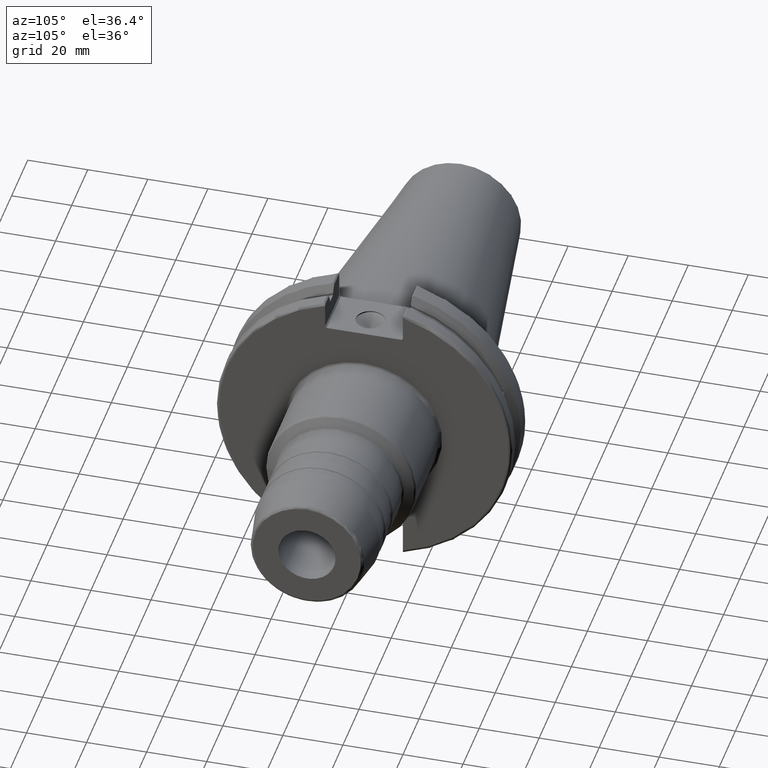
[diagram: clean part render]
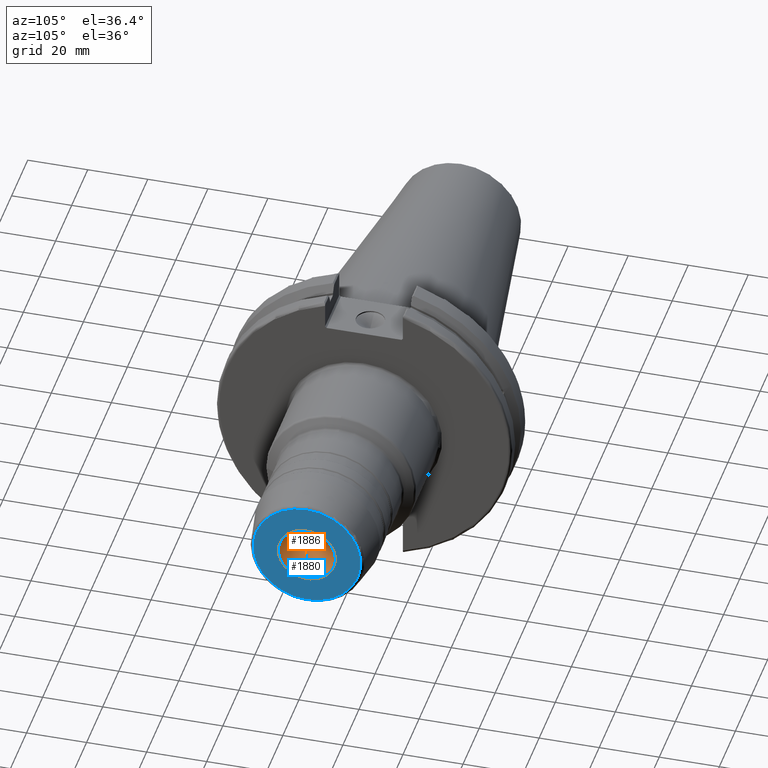
[diagram: same view with the hole feature highlighted: cylindrical wall and planar end face, labeled with their STEP entity ids]
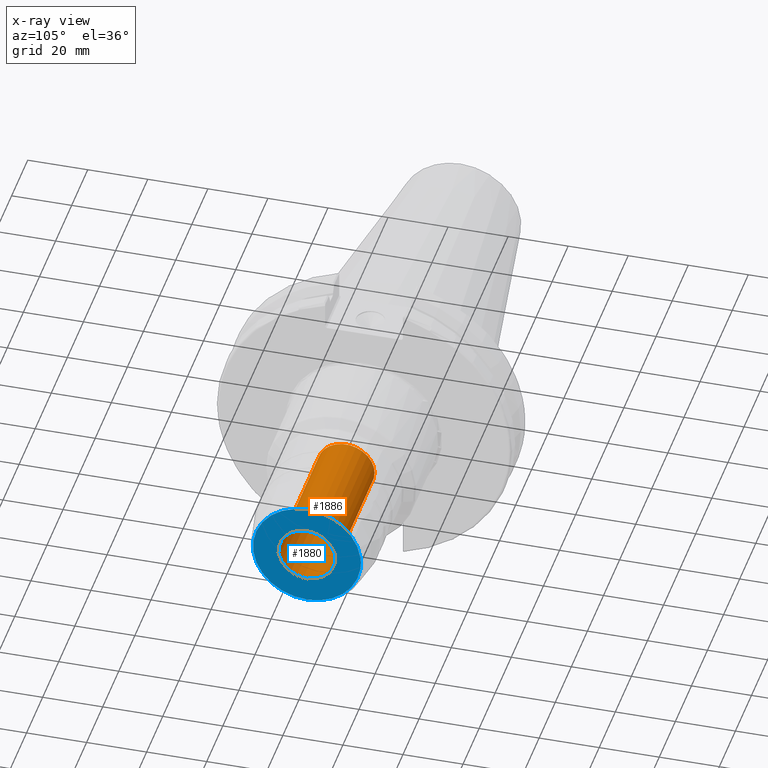
[diagram: x-ray of the same camera — body ghosted, the hole faces saturated]
A machine part, auxiliary view. The highlighted faces form one hole feature of diameter 19.05 mm: the cylindrical wall (entity #1886, orange) and its adjacent planar end face (entity #1880, blue) — they share a circular edge in the B-rep.
The next image is the same camera in x-ray (body ghosted, the hole faces saturated) — the bore reads through the body.
Wall:
#174=LINE('',#3088,#278);
#278=VECTOR('',#2458,9.525);
#366=CYLINDRICAL_SURFACE('',#2088,9.525);
#420=FACE_OUTER_BOUND('',#533,.T.);
#533=EDGE_LOOP('',(#1425,#1426,#1427,#1428));
#685=CIRCLE('',#2073,9.525);
#695=CIRCLE('',#2089,9.52499999999999);
#804=VERTEX_POINT('',#2964);
#827=VERTEX_POINT('',#3087);
#1025=EDGE_CURVE('',#804,#804,#685,.T.);
#1051=EDGE_CURVE('',#804,#827,#174,.T.);
#1052=EDGE_CURVE('',#827,#827,#695,.T.);
#1425=ORIENTED_EDGE('',*,*,#1025,.T.);
#1426=ORIENTED_EDGE('',*,*,#1051,.T.);
#1427=ORIENTED_EDGE('',*,*,#1052,.F.);
#1428=ORIENTED_EDGE('',*,*,#1051,.F.);
#1886=ADVANCED_FACE('',(#420),#366,.F.);
#2073=AXIS2_PLACEMENT_3D('',#2965,#2414,#2415);
#2088=AXIS2_PLACEMENT_3D('',#3086,#2456,#2457);
#2089=AXIS2_PLACEMENT_3D('',#3089,#2459,#2460);
#2414=DIRECTION('center_axis',(1.,0.,0.));
#2415=DIRECTION('ref_axis',(0.,0.,-1.));
#2456=DIRECTION('center_axis',(1.,0.,0.));
#2457=DIRECTION('ref_axis',(0.,1.,0.));
#2458=DIRECTION('',(-1.,0.,0.));
#2459=DIRECTION('center_axis',(1.,0.,0.));
#2460=DIRECTION('ref_axis',(0.,0.,-1.));
#2964=CARTESIAN_POINT('',(90.,-9.525,-1.16647607618785E-15));
#2965=CARTESIAN_POINT('Origin',(90.,0.,0.));
#3086=CARTESIAN_POINT('Origin',(65.75,0.,0.));
#3087=CARTESIAN_POINT('',(41.5,-9.525,-1.16647607618785E-15));
#3088=CARTESIAN_POINT('',(65.75,-9.525,-1.16647607618785E-15));
#3089=CARTESIAN_POINT('Origin',(41.5,0.,0.));
End face:
#75=FACE_BOUND('',#523,.T.);
#93=PLANE('',#2072);
#414=FACE_OUTER_BOUND('',#522,.T.);
#522=EDGE_LOOP('',(#1390));
#523=EDGE_LOOP('',(#1391));
#683=CIRCLE('',#2070,17.9609003688227);
#685=CIRCLE('',#2073,9.525);
#803=VERTEX_POINT('',#2960);
#804=VERTEX_POINT('',#2964);
#1023=EDGE_CURVE('',#803,#803,#683,.T.);
#1025=EDGE_CURVE('',#804,#804,#685,.T.);
#1390=ORIENTED_EDGE('',*,*,#1023,.F.);
#1391=ORIENTED_EDGE('',*,*,#1025,.F.);
#1880=ADVANCED_FACE('',(#414,#75),#93,.T.);
#2070=AXIS2_PLACEMENT_3D('',#2961,#2408,#2409);
#2072=AXIS2_PLACEMENT_3D('',#2963,#2412,#2413);
#2073=AXIS2_PLACEMENT_3D('',#2965,#2414,#2415);
#2408=DIRECTION('center_axis',(-1.,0.,0.));
#2409=DIRECTION('ref_axis',(0.,-1.,1.83697019872103E-16));
#2412=DIRECTION('center_axis',(1.,0.,0.));
#2413=DIRECTION('ref_axis',(0.,0.,-1.));
#2414=DIRECTION('center_axis',(1.,0.,0.));
#2415=DIRECTION('ref_axis',(0.,0.,-1.));
#2960=CARTESIAN_POINT('',(90.,-2.19957591464833E-15,17.9609003688227));
#2961=CARTESIAN_POINT('Origin',(90.,0.,0.));
#2963=CARTESIAN_POINT('Origin',(90.,9.525,0.));
#2964=CARTESIAN_POINT('',(90.,-9.525,-1.16647607618785E-15));
#2965=CARTESIAN_POINT('Origin',(90.,0.,0.));